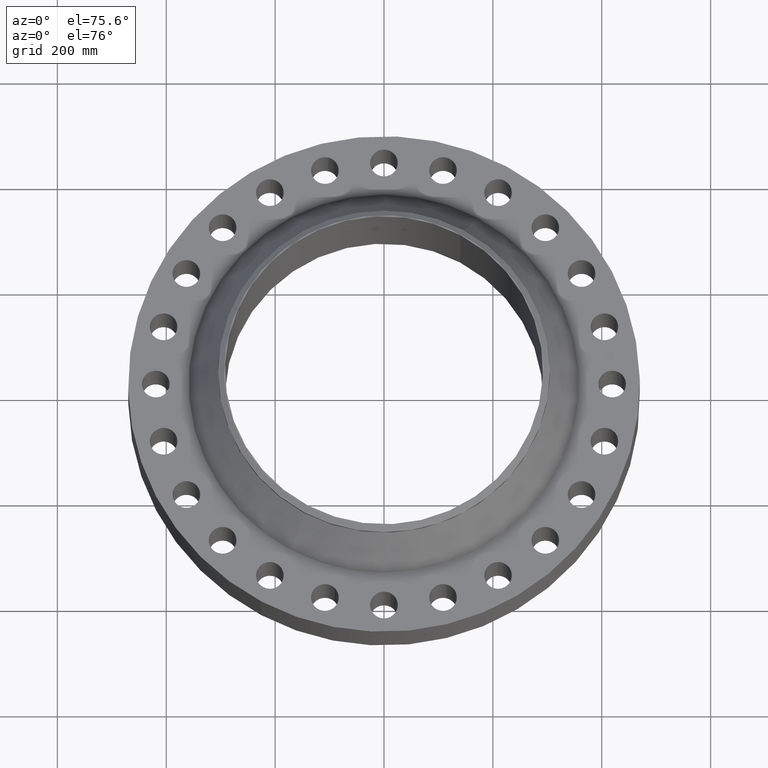
[diagram: clean part render]
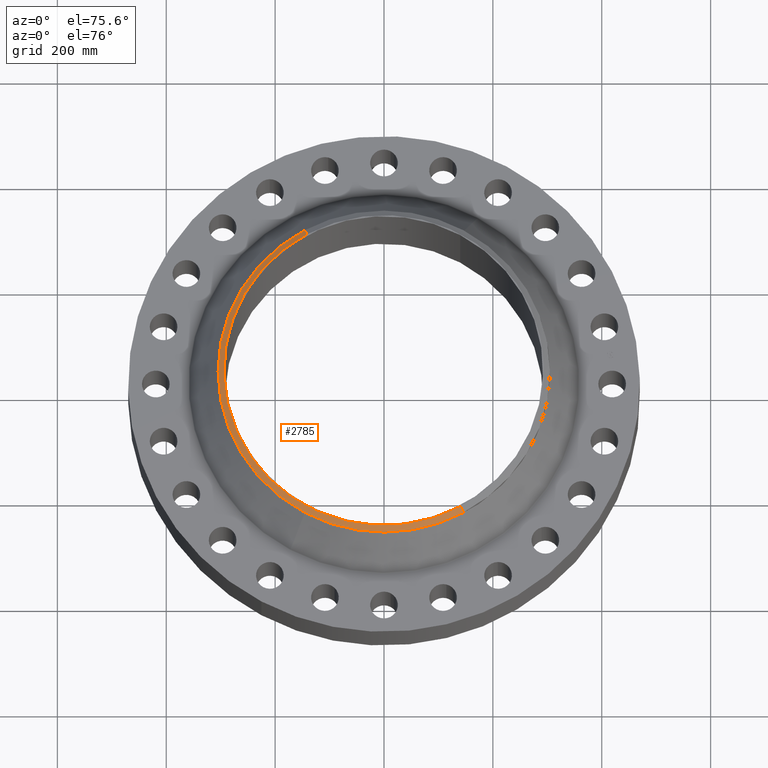
[diagram: same view with one face highlighted and labeled with its STEP entity id]
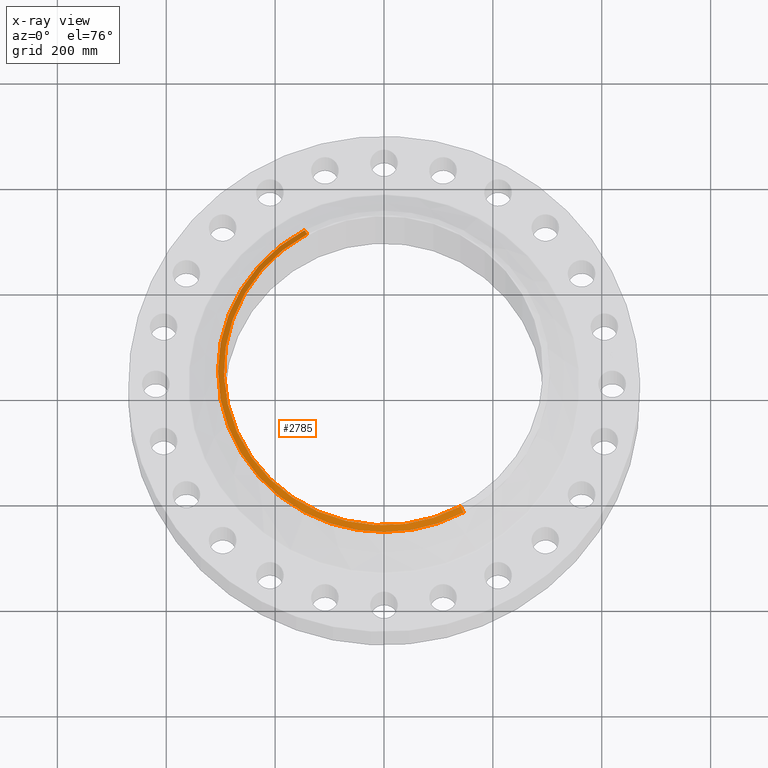
[diagram: x-ray of the same camera — body ghosted, the highlighted face saturated]
A machine part, auxiliary view. The second image highlights one B-rep face of the part: STEP entity #2785.
The next image is the same camera in x-ray: the body ghosted, the highlighted face saturated — about 0% of this face is hidden behind the body in this view.
In plain terms, the highlighted conical surface has half-angle 52.5 deg.
Its self-contained STEP definition (entity closure, byte-faithful):
#2455=AXIS2_PLACEMENT_3D('Circle Axis2P3D',#2453,#2454,$) ;
#2764=AXIS2_PLACEMENT_3D('Cone Axis2P3D',#2761,#2762,#2763) ;
#2768=AXIS2_PLACEMENT_3D('Circle Axis2P3D',#2766,#2767,$) ;
#2775=AXIS2_PLACEMENT_3D('Circle Axis2P3D',#2773,#2774,$) ;
#2448=CARTESIAN_POINT('Vertex',(5.55114373638,-10.1613004509,8.00000000002)) ;
#2450=CARTESIAN_POINT('Vertex',(-5.55114373637,10.1613004509,8.00000000003)) ;
#2453=CARTESIAN_POINT('Axis2P3D Location',(4.36656485248E-011,3.11900286875E-011,8.00000000003)) ;
#2720=CARTESIAN_POINT('Line Origine',(-5.65212509982,10.3461455968,7.83837797697)) ;
#2724=CARTESIAN_POINT('Vertex',(-5.75310646326,10.5309907427,7.67675595391)) ;
#2727=CARTESIAN_POINT('Line Origine',(5.65212509982,-10.3461455968,7.83837797697)) ;
#2731=CARTESIAN_POINT('Vertex',(5.75310646326,-10.5309907427,7.67675595391)) ;
#2761=CARTESIAN_POINT('Axis2P3D Location',(0.,0.,8.00000000003)) ;
#2766=CARTESIAN_POINT('Axis2P3D Location',(0.,0.,7.67675595392)) ;
#2770=CARTESIAN_POINT('Vertex',(-5.75310646325,-10.5309907427,7.67675595391)) ;
#2773=CARTESIAN_POINT('Axis2P3D Location',(0.,0.,7.67675595392)) ;
#2454=DIRECTION('Axis2P3D Direction',(0.,0.,-0.0393700787402)) ;
#2721=DIRECTION('Vector Direction',(-0.014974561121,0.02741075027,-0.023966985394)) ;
#2728=DIRECTION('Vector Direction',(0.014974561121,-0.02741075027,-0.023966985394)) ;
#2762=DIRECTION('Axis2P3D Direction',(-0.,-0.,-0.0393700787402)) ;
#2763=DIRECTION('Axis2P3D XDirection',(0.0188750212049,-0.0345504945626,0.)) ;
#2767=DIRECTION('Axis2P3D Direction',(-0.,0.,-0.0393700787402)) ;
#2774=DIRECTION('Axis2P3D Direction',(-0.,0.,-0.0393700787402)) ;
#2722=VECTOR('Line Direction',#2721,0.0393700787402) ;
#2729=VECTOR('Line Direction',#2728,0.0393700787402) ;
#2779=ORIENTED_EDGE('',*,*,#2733,.F.) ;
#2780=ORIENTED_EDGE('',*,*,#2457,.F.) ;
#2781=ORIENTED_EDGE('',*,*,#2726,.T.) ;
#2782=ORIENTED_EDGE('',*,*,#2772,.T.) ;
#2783=ORIENTED_EDGE('',*,*,#2777,.F.) ;
#2785=ADVANCED_FACE('PartBody',(#2784),#2765,.T.) ;
#2456=CIRCLE('generated circle',#2455,11.5787401575) ;
#2769=CIRCLE('generated circle',#2768,12.) ;
#2776=CIRCLE('generated circle',#2775,12.) ;
#2765=CONICAL_SURFACE('Cone',#2764,11.5787401575,0.916297857297) ;
#2457=EDGE_CURVE('',#2451,#2449,#2456,.F.) ;
#2726=EDGE_CURVE('',#2451,#2725,#2723,.T.) ;
#2733=EDGE_CURVE('',#2449,#2732,#2730,.T.) ;
#2772=EDGE_CURVE('',#2725,#2771,#2769,.F.) ;
#2777=EDGE_CURVE('',#2732,#2771,#2776,.T.) ;
#2778=EDGE_LOOP('',(#2779,#2780,#2781,#2782,#2783)) ;
#2784=FACE_OUTER_BOUND('',#2778,.T.) ;
#2723=LINE('Line',#2720,#2722) ;
#2730=LINE('Line',#2727,#2729) ;
#2449=VERTEX_POINT('',#2448) ;
#2451=VERTEX_POINT('',#2450) ;
#2725=VERTEX_POINT('',#2724) ;
#2732=VERTEX_POINT('',#2731) ;
#2771=VERTEX_POINT('',#2770) ;